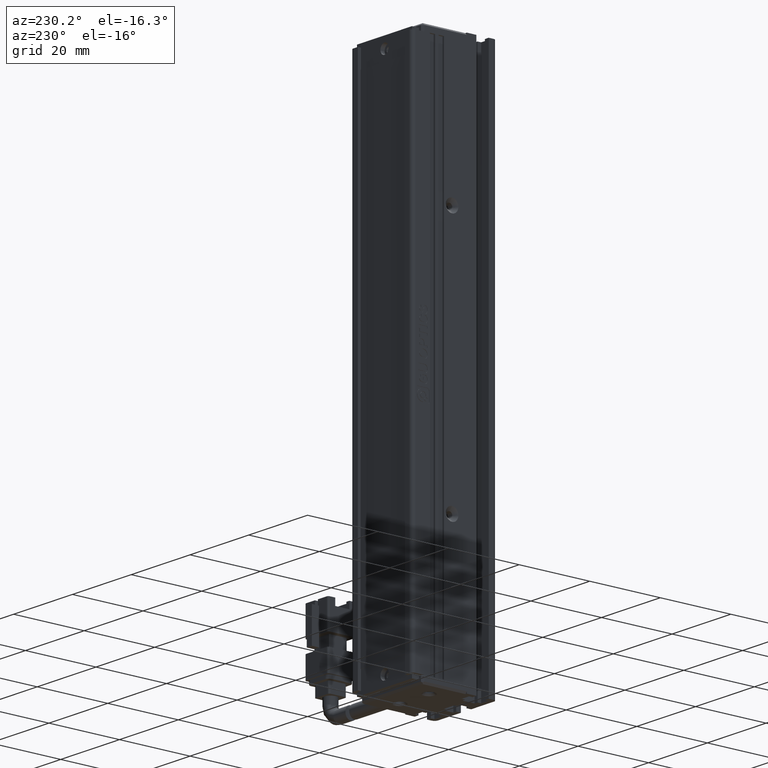
[diagram: clean part render]
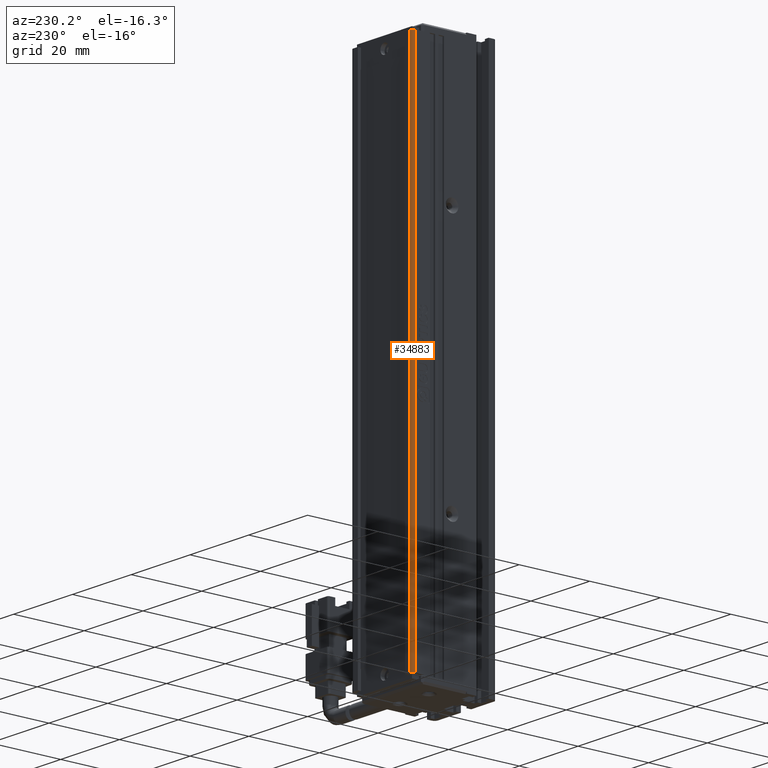
[diagram: same view with one face highlighted and labeled with its STEP entity id]
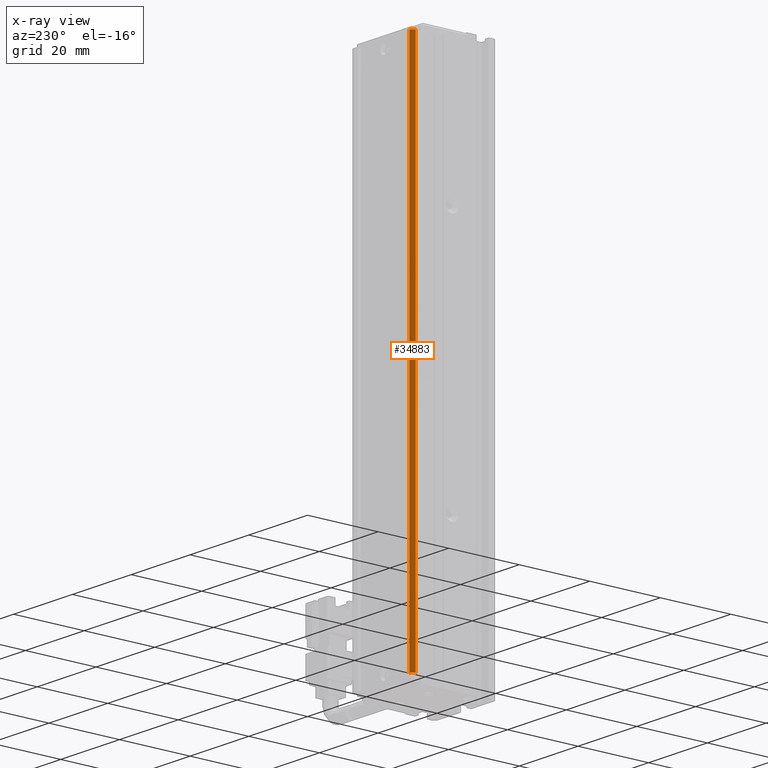
[diagram: x-ray of the same camera — body ghosted, the highlighted face saturated]
A machine part, auxiliary view. The second image highlights one B-rep face of the part: STEP entity #34883.
The next image is the same camera in x-ray: the body ghosted, the highlighted face saturated — about 0% of this face is hidden behind the body in this view.
In plain terms, the highlighted cylindrical surface (edge-blend (fillet) strip) has radius 1 mm, axis along (-0, -0, -1).
Its self-contained STEP definition (entity closure, byte-faithful):
#167 = CARTESIAN_POINT ( 'NONE',  ( 31.42537974683542100, 33.99073232304837000, -188.0000000000000000 ) ) ;
#579 = DIRECTION ( 'NONE',  ( -1.000000000000000000, 0.0000000000000000000, 0.0000000000000000000 ) ) ;
#1564 = ORIENTED_EDGE ( 'NONE', *, *, #17037, .T. ) ;
#1891 = CARTESIAN_POINT ( 'NONE',  ( 31.42537974683542100, 34.99073232304837700, -188.0000000000000000 ) ) ;
#1982 = VERTEX_POINT ( 'NONE', #42264 ) ;
#2841 = CIRCLE ( 'NONE', #28702, 1.000000000000000900 ) ;
#3592 = VERTEX_POINT ( 'NONE', #1891 ) ;
#3861 = CIRCLE ( 'NONE', #13049, 1.000000000000000900 ) ;
#4038 = VECTOR ( 'NONE', #18447, 1000.000000000000000 ) ;
#5842 = CYLINDRICAL_SURFACE ( 'NONE', #28375, 1.000000000000000900 ) ;
#7804 = DIRECTION ( 'NONE',  ( -0.0000000000000000000, -0.0000000000000000000, -1.000000000000000000 ) ) ;
#9118 = VERTEX_POINT ( 'NONE', #38089 ) ;
#9129 = DIRECTION ( 'NONE',  ( -0.0000000000000000000, -0.0000000000000000000, -1.000000000000000000 ) ) ;
#9258 = CARTESIAN_POINT ( 'NONE',  ( 31.42537974683542100, 33.99073232304837000, -40.00000000000000700 ) ) ;
#9861 = CARTESIAN_POINT ( 'NONE',  ( 30.42537974683542500, 33.99073232304837000, -42.00000000000000700 ) ) ;
#10917 = LINE ( 'NONE', #28632, #35403 ) ;
#11235 = EDGE_CURVE ( 'NONE', #3592, #1982, #2841, .T. ) ;
#12533 = ORIENTED_EDGE ( 'NONE', *, *, #41575, .F. ) ;
#13049 = AXIS2_PLACEMENT_3D ( 'NONE', #20809, #7804, #34038 ) ;
#13334 = ORIENTED_EDGE ( 'NONE', *, *, #11235, .T. ) ;
#15020 = DIRECTION ( 'NONE',  ( -0.0000000000000000000, -0.0000000000000000000, -1.000000000000000000 ) ) ;
#17037 = EDGE_CURVE ( 'NONE', #9118, #3592, #10917, .T. ) ;
#18447 = DIRECTION ( 'NONE',  ( -0.0000000000000000000, -0.0000000000000000000, -1.000000000000000000 ) ) ;
#20809 = CARTESIAN_POINT ( 'NONE',  ( 31.42537974683542100, 33.99073232304837000, -42.00000000000000700 ) ) ;
#21940 = LINE ( 'NONE', #22212, #4038 ) ;
#22212 = CARTESIAN_POINT ( 'NONE',  ( 30.42537974683542500, 33.99073232304837000, -40.00000000000000700 ) ) ;
#25790 = FACE_OUTER_BOUND ( 'NONE', #26800, .T. ) ;
#26800 = EDGE_LOOP ( 'NONE', ( #13334, #12533, #31904, #1564 ) ) ;
#28375 = AXIS2_PLACEMENT_3D ( 'NONE', #9258, #9129, #32244 ) ;
#28632 = CARTESIAN_POINT ( 'NONE',  ( 31.42537974683542100, 34.99073232304837000, -40.00000000000000700 ) ) ;
#28702 = AXIS2_PLACEMENT_3D ( 'NONE', #167, #29829, #579 ) ;
#29829 = DIRECTION ( 'NONE',  ( 0.0000000000000000000, 0.0000000000000000000, 1.000000000000000000 ) ) ;
#31466 = EDGE_CURVE ( 'NONE', #32287, #9118, #3861, .T. ) ;
#31904 = ORIENTED_EDGE ( 'NONE', *, *, #31466, .T. ) ;
#32244 = DIRECTION ( 'NONE',  ( -1.000000000000000000, 0.0000000000000000000, 0.0000000000000000000 ) ) ;
#32287 = VERTEX_POINT ( 'NONE', #9861 ) ;
#34038 = DIRECTION ( 'NONE',  ( -1.000000000000000000, 0.0000000000000000000, 0.0000000000000000000 ) ) ;
#34883 = ADVANCED_FACE ( 'NONE', ( #25790 ), #5842, .T. ) ;
#35403 = VECTOR ( 'NONE', #15020, 1000.000000000000000 ) ;
#38089 = CARTESIAN_POINT ( 'NONE',  ( 31.42537974683542100, 34.99073232304837700, -42.00000000000000700 ) ) ;
#41575 = EDGE_CURVE ( 'NONE', #32287, #1982, #21940, .T. ) ;
#42264 = CARTESIAN_POINT ( 'NONE',  ( 30.42537974683542500, 33.99073232304837000, -188.0000000000000000 ) ) ;